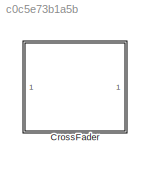
MODEL slx_c0c5e73b1a5b
KIND library
CONFIG AbsTol = auto
CONFIG EnableMultiTasking = off
CONFIG FixedStep = auto
CONFIG MaxStep = auto
CONFIG MinStep = auto
CONFIG RelTol = 1e-3
CONFIG SampleTimeConstraint = Unconstrained
CONFIG SolverName = VariableStepAuto
CONFIG StartTime = 0.0
CONFIG StopTime = 10.0
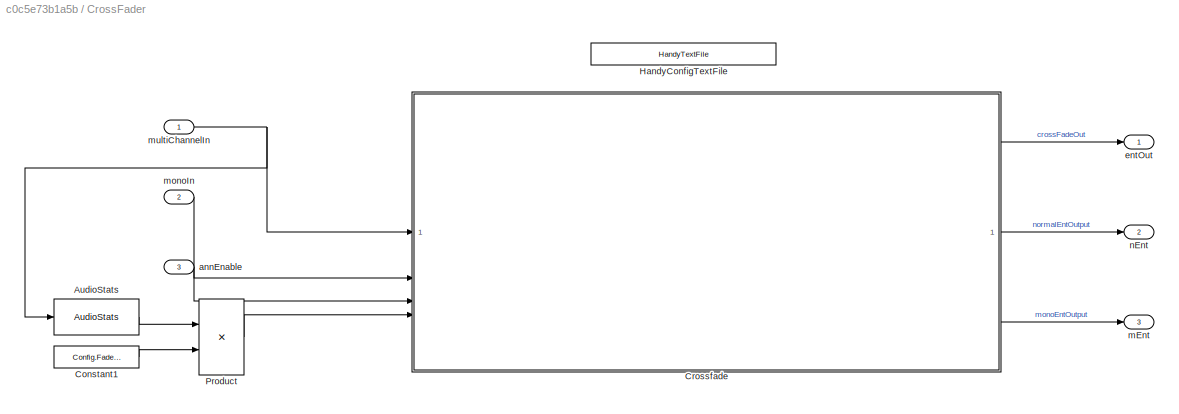
BLOCK [SubSystem] CrossFader
  LibrarySourceBlock = PreAmpLib/PreAmp/Subsystem
BLOCK [Reference] CrossFader/AudioStats  REF=AudioStats/AudioStats
  SourceBlock = AudioStats/AudioStats
  SourceProductName = Bose Talaria
  SourceType = Talaria Audio Statistics
BLOCK [Constant] CrossFader/Constant1
  Value = Config.FadeTime
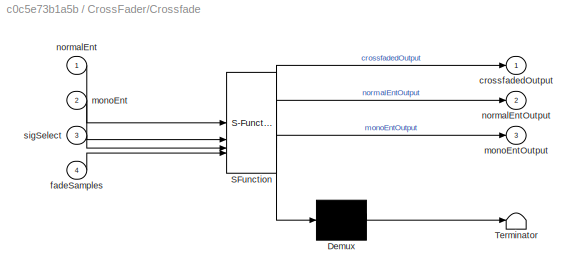
BLOCK [SubSystem] CrossFader/Crossfade 
  ErrorFcn = Stateflow.Translate.translate
  PermitHierarchicalResolution = ExplicitOnly
  SFBlockType = MATLAB Function
  TreatAsAtomicUnit = on
BLOCK [Demux] CrossFader/Crossfade / Demux 
  Outputs = 1
BLOCK [S-Function] CrossFader/Crossfade / SFunction 
  EnableBusSupport = off
  FunctionName = sf_sfun
  PortCounts = [4 4]
  SFcnIsStateOwnerBlock = off
  SFunctionDeploymentMode = off
  Tag = Stateflow S-Function 2
BLOCK [Terminator] CrossFader/Crossfade / Terminator 
BLOCK [Outport] CrossFader/Crossfade /crossfadedOutput
  VectorParamsAs1DForOutWhenUnconnected = off
BLOCK [Inport] CrossFader/Crossfade /fadeSamples
  Port = 4
BLOCK [Inport] CrossFader/Crossfade /monoEnt
  Port = 2
BLOCK [Outport] CrossFader/Crossfade /monoEntOutput
  Port = 3
BLOCK [Inport] CrossFader/Crossfade /normalEnt
BLOCK [Outport] CrossFader/Crossfade /normalEntOutput
  Port = 2
BLOCK [Inport] CrossFader/Crossfade /sigSelect
  Port = 3
BLOCK [Reference] CrossFader/HandyConfigTextFile  REF=HandyTextFile/HandyTextFile
  SourceBlock = HandyTextFile/HandyTextFile
  SourceProductName = Bose Talaria
  SourceType = Talaria Handy Text File
BLOCK [Product] CrossFader/Product
BLOCK [Inport] CrossFader/annEnable
  Port = 3
BLOCK [Outport] CrossFader/entOut
BLOCK [Outport] CrossFader/mEnt
  Port = 3
BLOCK [Inport] CrossFader/monoIn
  Port = 2
BLOCK [Inport] CrossFader/multiChannelIn
BLOCK [Outport] CrossFader/nEnt
  Port = 2
LINE CrossFader/AudioStats:1 -> CrossFader/Product:1
LINE CrossFader/Constant1:1 -> CrossFader/Product:2
LINE CrossFader/Crossfade :1 -> CrossFader/entOut:1
LINE CrossFader/Crossfade :2 -> CrossFader/nEnt:1
LINE CrossFader/Crossfade :3 -> CrossFader/mEnt:1
LINE CrossFader/Product:1 -> CrossFader/Crossfade :4
LINE CrossFader/annEnable:1 -> CrossFader/Crossfade :3
LINE CrossFader/monoIn:1 -> CrossFader/Crossfade :2
NET CrossFader/multiChannelIn:1 -> CrossFader/AudioStats:1, CrossFader/Crossfade :1
note: NET lines group one-source signal fan-out (src -> all destinations, sorted); 1:1 wires keep LINE
CHART CrossFader/Crossfade
 states=1 transitions=1
  STATE_LABEL 'eML_blk_kernel()'
  STATE_LABEL 'SCRIPT:\nfunction [crossfadedOutput, normalEntOutput, monoEntOutput] = crossfade(normalEnt,monoEnt,sigSelect,fadeSamples)\n% fadetime in ms\n% sigSelect = 0 passes normalEnt, sigSelect = 1 passes monoEnt\n\npersistent currentFadeInd;\npersistent currentSig;\n\n% first run init\nif (isempty(currentFadeInd))\n    currentFadeInd = 0;\n    currentSig = uint32(0);\nend\n\n% Selection changed\nstartFade = 0;\nif (curre...<+2078ch>'
CHART  states=0 transitions=0
